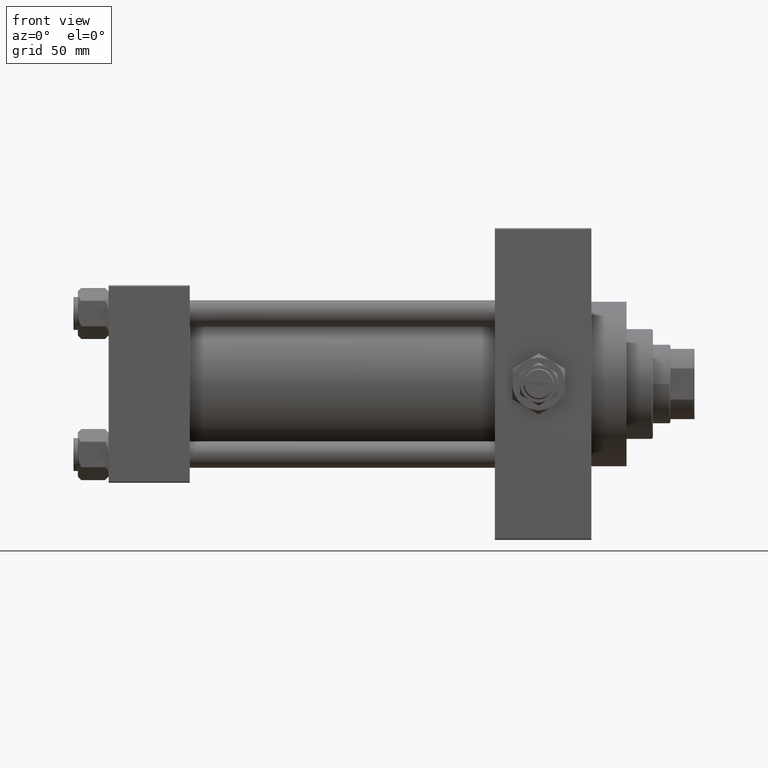
[diagram: clean part render]
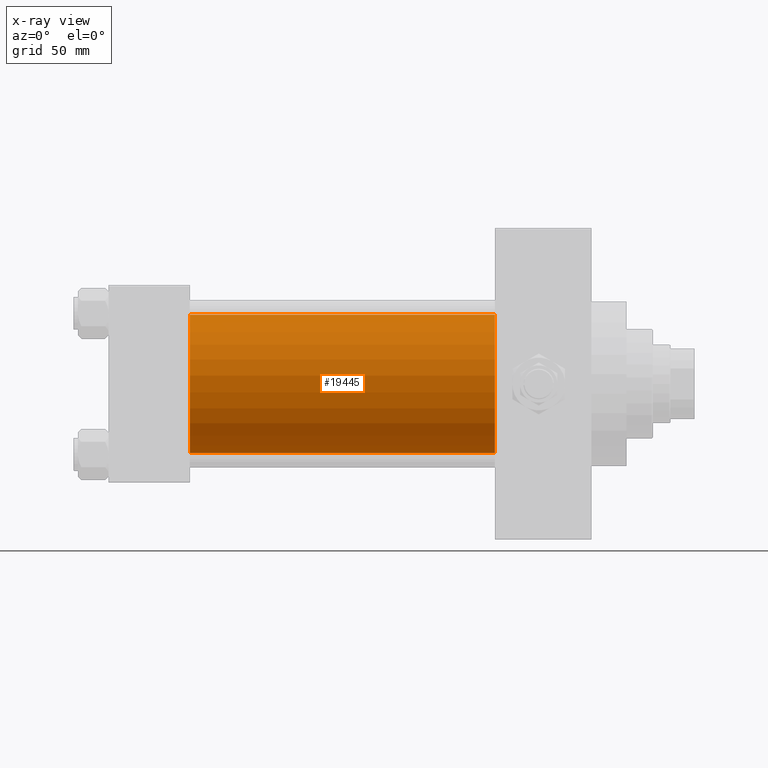
[diagram: x-ray — body ghosted, one internal face saturated and labeled with its STEP entity id]
A machine part, front view, then the same camera in x-ray: the body is ghosted and one INTERNAL B-rep face — a face not visible from any outside direction — is saturated and labeled: STEP entity #19445.
In plain terms, the highlighted cylindrical surface (partial cylindrical patch) has radius 31.5 mm, axis along (-1, -0, -0).
Its self-contained STEP definition (entity closure, byte-faithful):
#1345 = CARTESIAN_POINT ( 'NONE',  ( 176.0000000000000284, 1.255552203348951850E-15, -31.50000000000000000 ) ) ;
#1579 = DIRECTION ( 'NONE',  ( -1.000000000000000000, -0.000000000000000000, -0.000000000000000000 ) ) ;
#3386 = DIRECTION ( 'NONE',  ( -1.000000000000000000, -0.000000000000000000, -0.000000000000000000 ) ) ;
#3986 = EDGE_CURVE ( 'NONE', #36355, #48950, #48450, .T. ) ;
#5874 = EDGE_CURVE ( 'NONE', #36355, #18677, #43536, .T. ) ;
#7836 = CARTESIAN_POINT ( 'NONE',  ( 176.0000000000000284, -2.602085213965210642E-15, 0.000000000000000000 ) ) ;
#7981 = VERTEX_POINT ( 'NONE', #40172 ) ;
#9762 = CYLINDRICAL_SURFACE ( 'NONE', #33078, 31.50000000000000000 ) ;
#10904 = EDGE_CURVE ( 'NONE', #48950, #7981, #17051, .T. ) ;
#11058 = DIRECTION ( 'NONE',  ( 1.000000000000000000, 0.000000000000000000, 0.000000000000000000 ) ) ;
#13878 = CARTESIAN_POINT ( 'NONE',  ( 37.00000000000000000, -2.602085213965210642E-15, 31.50000000000000000 ) ) ;
#14380 = CARTESIAN_POINT ( 'NONE',  ( 37.00000000000000000, -2.602085213965210642E-15, 0.000000000000000000 ) ) ;
#16707 = DIRECTION ( 'NONE',  ( 0.000000000000000000, 0.000000000000000000, 1.000000000000000000 ) ) ;
#17051 = CIRCLE ( 'NONE', #41568, 31.50000000000000000 ) ;
#17298 = VECTOR ( 'NONE', #1579, 1000.000000000000000 ) ;
#17582 = EDGE_CURVE ( 'NONE', #18677, #7981, #24819, .T. ) ;
#18677 = VERTEX_POINT ( 'NONE', #1345 ) ;
#19445 = ADVANCED_FACE ( 'NONE', ( #43667 ), #9762, .F. ) ;
#22044 = VECTOR ( 'NONE', #3386, 1000.000000000000000 ) ;
#22782 = EDGE_LOOP ( 'NONE', ( #35925, #25675, #27043, #31994 ) ) ;
#24624 = CARTESIAN_POINT ( 'NONE',  ( 176.0000000000000284, -2.602085213965210642E-15, 0.000000000000000000 ) ) ;
#24819 = LINE ( 'NONE', #35966, #17298 ) ;
#25675 = ORIENTED_EDGE ( 'NONE', *, *, #17582, .T. ) ;
#26411 = CARTESIAN_POINT ( 'NONE',  ( 176.0000000000000284, -2.602085213965210642E-15, 31.50000000000000000 ) ) ;
#27043 = ORIENTED_EDGE ( 'NONE', *, *, #10904, .F. ) ;
#28543 = AXIS2_PLACEMENT_3D ( 'NONE', #7836, #11058, #44973 ) ;
#29502 = DIRECTION ( 'NONE',  ( 1.000000000000000000, 0.000000000000000000, 0.000000000000000000 ) ) ;
#31598 = DIRECTION ( 'NONE',  ( -1.000000000000000000, -0.000000000000000000, -0.000000000000000000 ) ) ;
#31994 = ORIENTED_EDGE ( 'NONE', *, *, #3986, .F. ) ;
#33078 = AXIS2_PLACEMENT_3D ( 'NONE', #24624, #31598, #16707 ) ;
#35925 = ORIENTED_EDGE ( 'NONE', *, *, #5874, .T. ) ;
#35966 = CARTESIAN_POINT ( 'NONE',  ( 176.0000000000000284, 1.255552203348951850E-15, -31.50000000000000000 ) ) ;
#36355 = VERTEX_POINT ( 'NONE', #42790 ) ;
#40172 = CARTESIAN_POINT ( 'NONE',  ( 37.00000000000000000, 1.255552203348951850E-15, -31.50000000000000000 ) ) ;
#41568 = AXIS2_PLACEMENT_3D ( 'NONE', #14380, #29502, #48818 ) ;
#42790 = CARTESIAN_POINT ( 'NONE',  ( 176.0000000000000284, -2.602085213965210642E-15, 31.50000000000000000 ) ) ;
#43536 = CIRCLE ( 'NONE', #28543, 31.50000000000000000 ) ;
#43667 = FACE_OUTER_BOUND ( 'NONE', #22782, .T. ) ;
#44973 = DIRECTION ( 'NONE',  ( 0.000000000000000000, 0.000000000000000000, -1.000000000000000000 ) ) ;
#48450 = LINE ( 'NONE', #26411, #22044 ) ;
#48818 = DIRECTION ( 'NONE',  ( 0.000000000000000000, 0.000000000000000000, -1.000000000000000000 ) ) ;
#48950 = VERTEX_POINT ( 'NONE', #13878 ) ;